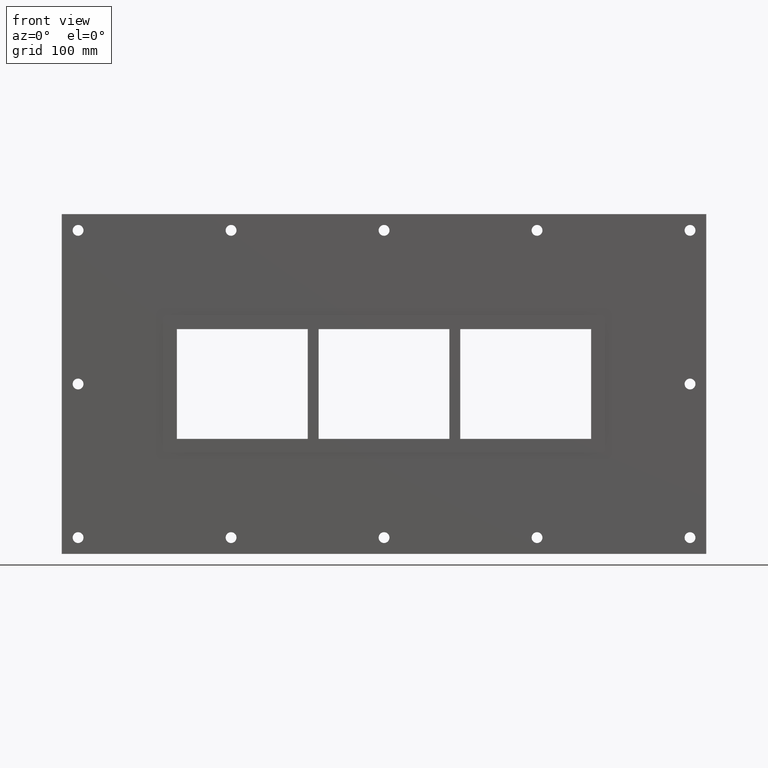
[diagram: clean part render]
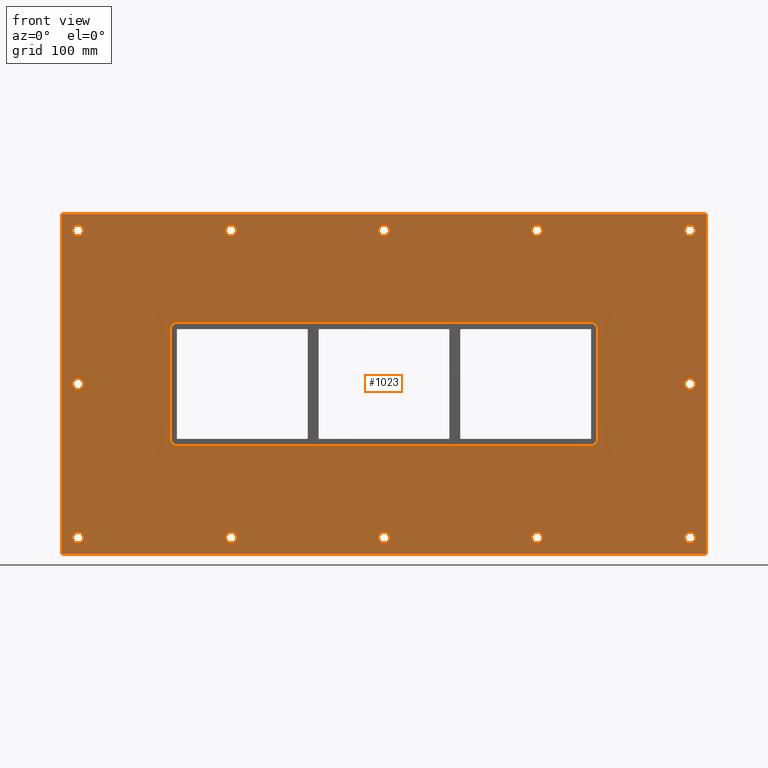
[diagram: same view with one face highlighted and labeled with its STEP entity id]
A machine part, front view. The second image highlights one B-rep face of the part: STEP entity #1023.
In plain terms, the highlighted planar face has unit normal (0, 1, 0).
Its self-contained STEP definition (entity closure, byte-faithful):
#84=CARTESIAN_POINT('',(-276.75000000000006,0.0,-141.49999999999994));
#85=VERTEX_POINT('',#84);
#86=CARTESIAN_POINT('',(-281.75000000000006,0.0,-141.49999999999994));
#87=DIRECTION('',(0.0,1.0,0.0));
#88=DIRECTION('',(1.0,0.0,0.0));
#89=AXIS2_PLACEMENT_3D('',#86,#87,#88);
#90=CIRCLE('',#89,5.0);
#91=EDGE_CURVE('',#85,#85,#90,.T.);
#112=CARTESIAN_POINT('',(286.85000000000002,0.0,5.329071E-014));
#113=VERTEX_POINT('',#112);
#114=CARTESIAN_POINT('',(281.85000000000002,0.0,5.329071E-014));
#115=DIRECTION('',(0.0,1.0,0.0));
#116=DIRECTION('',(1.0,0.0,0.0));
#117=AXIS2_PLACEMENT_3D('',#114,#115,#116);
#118=CIRCLE('',#117,5.0);
#119=EDGE_CURVE('',#113,#113,#118,.T.);
#140=CARTESIAN_POINT('',(-276.75000000000006,0.0,5.329071E-014));
#141=VERTEX_POINT('',#140);
#142=CARTESIAN_POINT('',(-281.75000000000006,0.0,5.329071E-014));
#143=DIRECTION('',(0.0,1.0,0.0));
#144=DIRECTION('',(1.0,0.0,0.0));
#145=AXIS2_PLACEMENT_3D('',#142,#143,#144);
#146=CIRCLE('',#145,5.0);
#147=EDGE_CURVE('',#141,#141,#146,.T.);
#168=CARTESIAN_POINT('',(-135.84999999999999,0.0,141.50000000000006));
#169=VERTEX_POINT('',#168);
#170=CARTESIAN_POINT('',(-140.84999999999999,0.0,141.50000000000006));
#171=DIRECTION('',(0.0,1.0,0.0));
#172=DIRECTION('',(1.0,0.0,0.0));
#173=AXIS2_PLACEMENT_3D('',#170,#171,#172);
#174=CIRCLE('',#173,5.0);
#175=EDGE_CURVE('',#169,#169,#174,.T.);
#196=CARTESIAN_POINT('',(-135.84999999999999,0.0,-141.50000000000003));
#197=VERTEX_POINT('',#196);
#198=CARTESIAN_POINT('',(-140.84999999999999,0.0,-141.50000000000003));
#199=DIRECTION('',(0.0,1.0,0.0));
#200=DIRECTION('',(1.0,0.0,0.0));
#201=AXIS2_PLACEMENT_3D('',#198,#199,#200);
#202=CIRCLE('',#201,5.0);
#203=EDGE_CURVE('',#197,#197,#202,.T.);
#224=CARTESIAN_POINT('',(5.04999999999999,0.0,141.50000000000006));
#225=VERTEX_POINT('',#224);
#226=CARTESIAN_POINT('',(0.04999999999999,0.0,141.50000000000006));
#227=DIRECTION('',(0.0,1.0,0.0));
#228=DIRECTION('',(1.0,0.0,0.0));
#229=AXIS2_PLACEMENT_3D('',#226,#227,#228);
#230=CIRCLE('',#229,5.0);
#231=EDGE_CURVE('',#225,#225,#230,.T.);
#252=CARTESIAN_POINT('',(5.04999999999999,0.0,-141.50000000000003));
#253=VERTEX_POINT('',#252);
#254=CARTESIAN_POINT('',(0.04999999999999,0.0,-141.50000000000003));
#255=DIRECTION('',(0.0,1.0,0.0));
#256=DIRECTION('',(1.0,0.0,0.0));
#257=AXIS2_PLACEMENT_3D('',#254,#255,#256);
#258=CIRCLE('',#257,5.0);
#259=EDGE_CURVE('',#253,#253,#258,.T.);
#280=CARTESIAN_POINT('',(145.95000000000002,0.0,141.50000000000006));
#281=VERTEX_POINT('',#280);
#282=CARTESIAN_POINT('',(140.95000000000002,0.0,141.50000000000006));
#283=DIRECTION('',(0.0,1.0,0.0));
#284=DIRECTION('',(1.0,0.0,0.0));
#285=AXIS2_PLACEMENT_3D('',#282,#283,#284);
#286=CIRCLE('',#285,5.0);
#287=EDGE_CURVE('',#281,#281,#286,.T.);
#308=CARTESIAN_POINT('',(145.95000000000002,0.0,-141.50000000000003));
#309=VERTEX_POINT('',#308);
#310=CARTESIAN_POINT('',(140.95000000000002,0.0,-141.50000000000003));
#311=DIRECTION('',(0.0,1.0,0.0));
#312=DIRECTION('',(1.0,0.0,0.0));
#313=AXIS2_PLACEMENT_3D('',#310,#311,#312);
#314=CIRCLE('',#313,5.0);
#315=EDGE_CURVE('',#309,#309,#314,.T.);
#336=CARTESIAN_POINT('',(286.85000000000002,0.0,-141.50000000000003));
#337=VERTEX_POINT('',#336);
#338=CARTESIAN_POINT('',(281.85000000000002,0.0,-141.50000000000003));
#339=DIRECTION('',(0.0,1.0,0.0));
#340=DIRECTION('',(1.0,0.0,0.0));
#341=AXIS2_PLACEMENT_3D('',#338,#339,#340);
#342=CIRCLE('',#341,5.0);
#343=EDGE_CURVE('',#337,#337,#342,.T.);
#364=CARTESIAN_POINT('',(-276.75000000000006,0.0,141.50000000000006));
#365=VERTEX_POINT('',#364);
#366=CARTESIAN_POINT('',(-281.75000000000006,0.0,141.50000000000006));
#367=DIRECTION('',(0.0,1.0,0.0));
#368=DIRECTION('',(1.0,0.0,0.0));
#369=AXIS2_PLACEMENT_3D('',#366,#367,#368);
#370=CIRCLE('',#369,5.0);
#371=EDGE_CURVE('',#365,#365,#370,.T.);
#392=CARTESIAN_POINT('',(286.85000000000002,0.0,141.50000000000006));
#393=VERTEX_POINT('',#392);
#394=CARTESIAN_POINT('',(281.85000000000002,0.0,141.50000000000006));
#395=DIRECTION('',(0.0,1.0,0.0));
#396=DIRECTION('',(1.0,0.0,0.0));
#397=AXIS2_PLACEMENT_3D('',#394,#395,#396);
#398=CIRCLE('',#397,5.0);
#399=EDGE_CURVE('',#393,#393,#398,.T.);
#878=CARTESIAN_POINT('',(1.881194E-014,0.0,-9.405971E-015));
#879=DIRECTION('',(0.0,1.0,0.0));
#880=DIRECTION('',(0.0,0.0,1.0));
#881=AXIS2_PLACEMENT_3D('',#878,#879,#880);
#882=PLANE('',#881);
#883=CARTESIAN_POINT('',(-296.75,0.0,156.5));
#884=VERTEX_POINT('',#883);
#885=CARTESIAN_POINT('',(296.75000000000006,0.0,156.5));
#886=VERTEX_POINT('',#885);
#887=CARTESIAN_POINT('',(-296.75,0.0,156.5));
#888=DIRECTION('',(1.0,0.0,0.0));
#889=VECTOR('',#888,593.50000000000011);
#890=LINE('',#887,#889);
#891=EDGE_CURVE('',#884,#886,#890,.T.);
#892=ORIENTED_EDGE('',*,*,#891,.F.);
#893=CARTESIAN_POINT('',(-296.75,0.0,-156.50000000000003));
#894=VERTEX_POINT('',#893);
#895=CARTESIAN_POINT('',(-296.75,0.0,-156.50000000000003));
#896=DIRECTION('',(0.0,0.0,1.0));
#897=VECTOR('',#896,313.00000000000006);
#898=LINE('',#895,#897);
#899=EDGE_CURVE('',#894,#884,#898,.T.);
#900=ORIENTED_EDGE('',*,*,#899,.F.);
#901=CARTESIAN_POINT('',(296.75000000000006,0.0,-156.50000000000003));
#902=VERTEX_POINT('',#901);
#903=CARTESIAN_POINT('',(296.75000000000006,0.0,-156.50000000000003));
#904=DIRECTION('',(-1.0,0.0,0.0));
#905=VECTOR('',#904,593.50000000000011);
#906=LINE('',#903,#905);
#907=EDGE_CURVE('',#902,#894,#906,.T.);
#908=ORIENTED_EDGE('',*,*,#907,.F.);
#909=CARTESIAN_POINT('',(296.75000000000006,0.0,156.5));
#910=DIRECTION('',(0.0,0.0,-1.0));
#911=VECTOR('',#910,313.00000000000006);
#912=LINE('',#909,#911);
#913=EDGE_CURVE('',#886,#902,#912,.T.);
#914=ORIENTED_EDGE('',*,*,#913,.F.);
#915=EDGE_LOOP('',(#892,#900,#908,#914));
#916=FACE_OUTER_BOUND('',#915,.T.);
#917=ORIENTED_EDGE('',*,*,#91,.T.);
#918=EDGE_LOOP('',(#917));
#919=FACE_BOUND('',#918,.T.);
#920=ORIENTED_EDGE('',*,*,#119,.T.);
#921=EDGE_LOOP('',(#920));
#922=FACE_BOUND('',#921,.T.);
#923=ORIENTED_EDGE('',*,*,#147,.T.);
#924=EDGE_LOOP('',(#923));
#925=FACE_BOUND('',#924,.T.);
#926=ORIENTED_EDGE('',*,*,#175,.T.);
#927=EDGE_LOOP('',(#926));
#928=FACE_BOUND('',#927,.T.);
#929=ORIENTED_EDGE('',*,*,#203,.T.);
#930=EDGE_LOOP('',(#929));
#931=FACE_BOUND('',#930,.T.);
#932=ORIENTED_EDGE('',*,*,#231,.T.);
#933=EDGE_LOOP('',(#932));
#934=FACE_BOUND('',#933,.T.);
#935=ORIENTED_EDGE('',*,*,#259,.T.);
#936=EDGE_LOOP('',(#935));
#937=FACE_BOUND('',#936,.T.);
#938=ORIENTED_EDGE('',*,*,#287,.T.);
#939=EDGE_LOOP('',(#938));
#940=FACE_BOUND('',#939,.T.);
#941=ORIENTED_EDGE('',*,*,#315,.T.);
#942=EDGE_LOOP('',(#941));
#943=FACE_BOUND('',#942,.T.);
#944=ORIENTED_EDGE('',*,*,#343,.T.);
#945=EDGE_LOOP('',(#944));
#946=FACE_BOUND('',#945,.T.);
#947=ORIENTED_EDGE('',*,*,#371,.T.);
#948=EDGE_LOOP('',(#947));
#949=FACE_BOUND('',#948,.T.);
#950=ORIENTED_EDGE('',*,*,#399,.T.);
#951=EDGE_LOOP('',(#950));
#952=FACE_BOUND('',#951,.T.);
#953=CARTESIAN_POINT('',(-196.75000000000006,0.0,-50.500000000000007));
#954=VERTEX_POINT('',#953);
#955=CARTESIAN_POINT('',(-190.75000000000003,0.0,-56.5));
#956=VERTEX_POINT('',#955);
#957=CARTESIAN_POINT('',(-190.75000000000003,0.0,-50.500000000000007));
#958=DIRECTION('',(0.0,-1.0,0.0));
#959=DIRECTION('',(-0.707106781186549,0.0,-0.707106781186546));
#960=AXIS2_PLACEMENT_3D('',#957,#958,#959);
#961=CIRCLE('',#960,6.000000000000001);
#962=EDGE_CURVE('',#954,#956,#961,.T.);
#963=ORIENTED_EDGE('',*,*,#962,.F.);
#964=CARTESIAN_POINT('',(-196.75000000000006,0.0,50.500000000000007));
#965=VERTEX_POINT('',#964);
#966=CARTESIAN_POINT('',(-196.75000000000006,0.0,50.500000000000007));
#967=DIRECTION('',(0.0,0.0,-1.0));
#968=VECTOR('',#967,101.00000000000001);
#969=LINE('',#966,#968);
#970=EDGE_CURVE('',#965,#954,#969,.T.);
#971=ORIENTED_EDGE('',*,*,#970,.F.);
#972=CARTESIAN_POINT('',(-190.75000000000003,0.0,56.5));
#973=VERTEX_POINT('',#972);
#974=CARTESIAN_POINT('',(-190.75000000000003,0.0,50.500000000000007));
#975=DIRECTION('',(0.0,-1.0,0.0));
#976=DIRECTION('',(-0.707106781186549,0.0,0.707106781186546));
#977=AXIS2_PLACEMENT_3D('',#974,#975,#976);
#978=CIRCLE('',#977,6.000000000000001);
#979=EDGE_CURVE('',#973,#965,#978,.T.);
#980=ORIENTED_EDGE('',*,*,#979,.F.);
#981=CARTESIAN_POINT('',(190.75000000000003,0.0,56.5));
#982=VERTEX_POINT('',#981);
#983=CARTESIAN_POINT('',(190.75,0.0,56.5));
#984=DIRECTION('',(-1.0,0.0,0.0));
#985=VECTOR('',#984,381.5);
#986=LINE('',#983,#985);
#987=EDGE_CURVE('',#982,#973,#986,.T.);
#988=ORIENTED_EDGE('',*,*,#987,.F.);
#989=CARTESIAN_POINT('',(196.75000000000006,0.0,50.500000000000007));
#990=VERTEX_POINT('',#989);
#991=CARTESIAN_POINT('',(190.75000000000003,0.0,50.500000000000007));
#992=DIRECTION('',(0.0,-1.0,0.0));
#993=DIRECTION('',(0.707106781186549,0.0,0.707106781186546));
#994=AXIS2_PLACEMENT_3D('',#991,#992,#993);
#995=CIRCLE('',#994,6.000000000000001);
#996=EDGE_CURVE('',#990,#982,#995,.T.);
#997=ORIENTED_EDGE('',*,*,#996,.F.);
#998=CARTESIAN_POINT('',(196.75000000000006,0.0,-50.500000000000007));
#999=VERTEX_POINT('',#998);
#1000=CARTESIAN_POINT('',(196.75000000000006,0.0,-50.5));
#1001=DIRECTION('',(0.0,0.0,1.0));
#1002=VECTOR('',#1001,101.0);
#1003=LINE('',#1000,#1002);
#1004=EDGE_CURVE('',#999,#990,#1003,.T.);
#1005=ORIENTED_EDGE('',*,*,#1004,.F.);
#1006=CARTESIAN_POINT('',(190.75000000000003,0.0,-56.5));
#1007=VERTEX_POINT('',#1006);
#1008=CARTESIAN_POINT('',(190.75000000000003,0.0,-50.500000000000007));
#1009=DIRECTION('',(0.0,-1.0,0.0));
#1010=DIRECTION('',(0.707106781186549,0.0,-0.707106781186546));
#1011=AXIS2_PLACEMENT_3D('',#1008,#1009,#1010);
#1012=CIRCLE('',#1011,6.000000000000001);
#1013=EDGE_CURVE('',#1007,#999,#1012,.T.);
#1014=ORIENTED_EDGE('',*,*,#1013,.F.);
#1015=CARTESIAN_POINT('',(-190.75000000000006,0.0,-56.5));
#1016=DIRECTION('',(1.0,0.0,0.0));
#1017=VECTOR('',#1016,381.50000000000011);
#1018=LINE('',#1015,#1017);
#1019=EDGE_CURVE('',#956,#1007,#1018,.T.);
#1020=ORIENTED_EDGE('',*,*,#1019,.F.);
#1021=EDGE_LOOP('',(#963,#971,#980,#988,#997,#1005,#1014,#1020));
#1022=FACE_BOUND('',#1021,.T.);
#1023=ADVANCED_FACE('',(#916,#919,#922,#925,#928,#931,#934,#937,#940,#943,#946,#949,#952,#1022),#882,.F.);